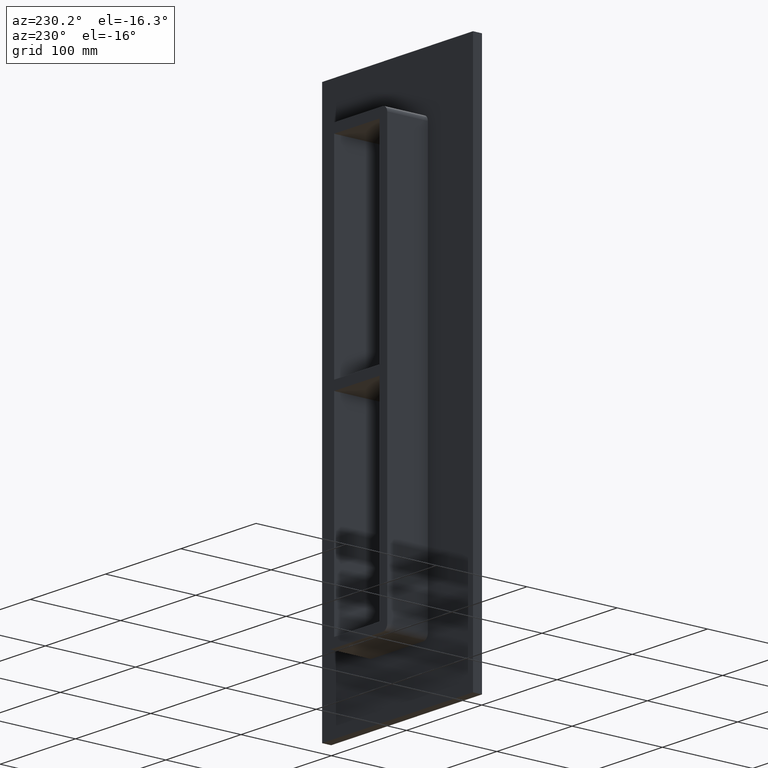
[diagram: clean part render]
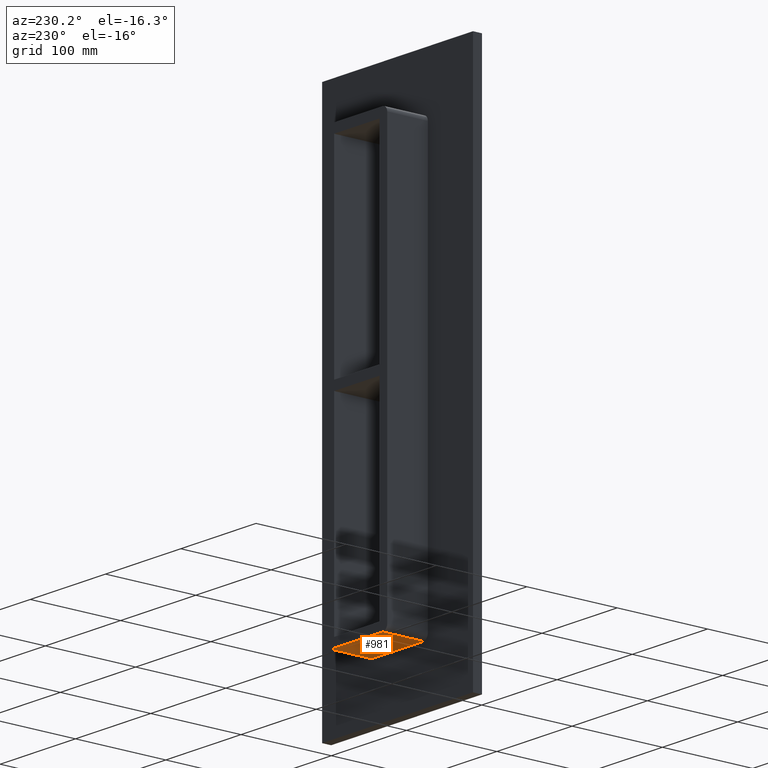
[diagram: same view with one face highlighted and labeled with its STEP entity id]
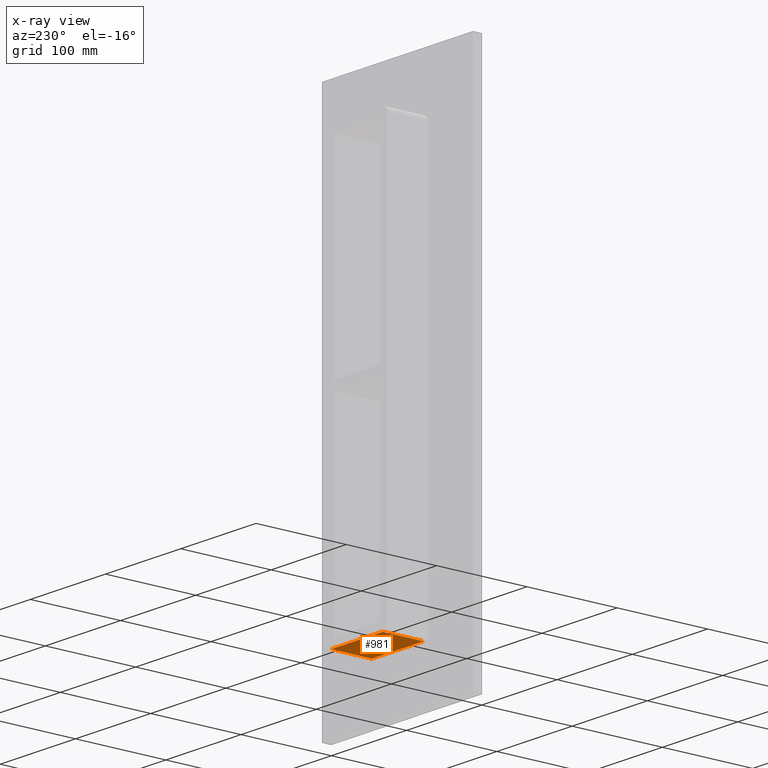
[diagram: x-ray of the same camera — body ghosted, the highlighted face saturated]
A machine part, auxiliary view. The second image highlights one B-rep face of the part: STEP entity #981.
The next image is the same camera in x-ray: the body ghosted, the highlighted face saturated — about 0% of this face is hidden behind the body in this view.
In plain terms, the highlighted planar face has unit normal (0, 0, -1).
Its self-contained STEP definition (entity closure, byte-faithful):
#316=CARTESIAN_POINT('',(-34.249999999999972,10.0,-233.00000000000006));
#317=VERTEX_POINT('',#316);
#325=CARTESIAN_POINT('',(34.250000000000007,10.0,-233.00000000000006));
#326=VERTEX_POINT('',#325);
#327=CARTESIAN_POINT('',(34.250000000000007,10.0,-233.00000000000006));
#328=DIRECTION('',(-1.0,0.0,0.0));
#329=VECTOR('',#328,68.499999999999972);
#330=LINE('',#327,#329);
#331=EDGE_CURVE('',#326,#317,#330,.T.);
#606=CARTESIAN_POINT('',(-34.249999999999972,55.0,-233.00000000000006));
#607=VERTEX_POINT('',#606);
#615=CARTESIAN_POINT('',(-34.249999999999972,10.0,-233.00000000000006));
#616=DIRECTION('',(0.0,1.0,0.0));
#617=VECTOR('',#616,45.0);
#618=LINE('',#615,#617);
#619=EDGE_CURVE('',#317,#607,#618,.T.);
#958=CARTESIAN_POINT('',(34.250000000000007,0.0,-233.00000000000006));
#959=DIRECTION('',(0.0,0.0,-1.0));
#960=DIRECTION('',(-1.0,0.0,0.0));
#961=AXIS2_PLACEMENT_3D('',#958,#959,#960);
#962=PLANE('',#961);
#963=ORIENTED_EDGE('',*,*,#331,.T.);
#964=ORIENTED_EDGE('',*,*,#619,.T.);
#965=CARTESIAN_POINT('',(34.250000000000007,55.0,-233.00000000000006));
#966=VERTEX_POINT('',#965);
#967=CARTESIAN_POINT('',(34.250000000000007,55.0,-233.00000000000006));
#968=DIRECTION('',(-1.0,0.0,0.0));
#969=VECTOR('',#968,68.499999999999972);
#970=LINE('',#967,#969);
#971=EDGE_CURVE('',#966,#607,#970,.T.);
#972=ORIENTED_EDGE('',*,*,#971,.F.);
#973=CARTESIAN_POINT('',(34.250000000000007,10.0,-233.00000000000006));
#974=DIRECTION('',(0.0,1.0,0.0));
#975=VECTOR('',#974,45.0);
#976=LINE('',#973,#975);
#977=EDGE_CURVE('',#326,#966,#976,.T.);
#978=ORIENTED_EDGE('',*,*,#977,.F.);
#979=EDGE_LOOP('',(#963,#964,#972,#978));
#980=FACE_OUTER_BOUND('',#979,.T.);
#981=ADVANCED_FACE('',(#980),#962,.T.);